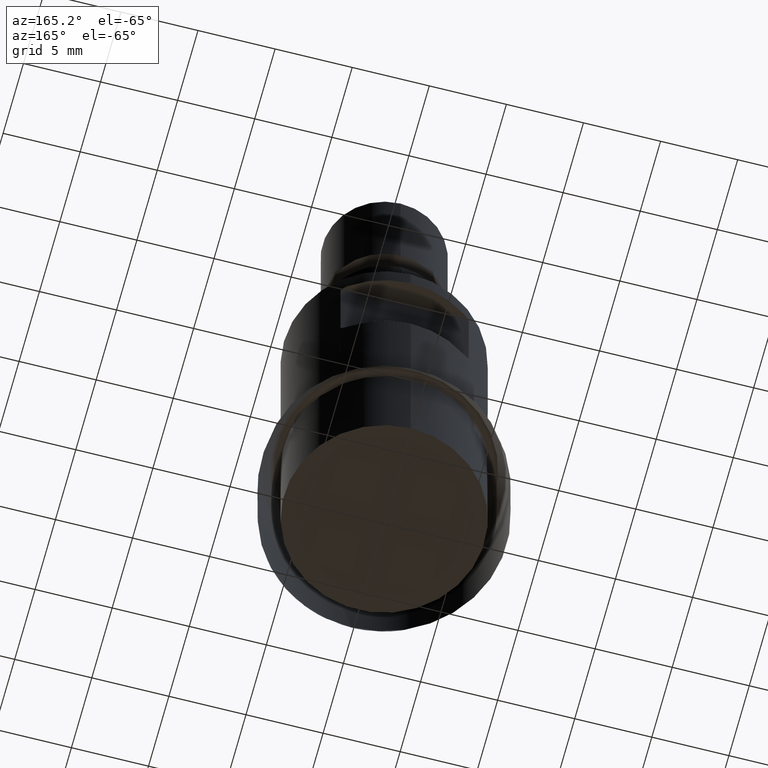
[diagram: clean part render]
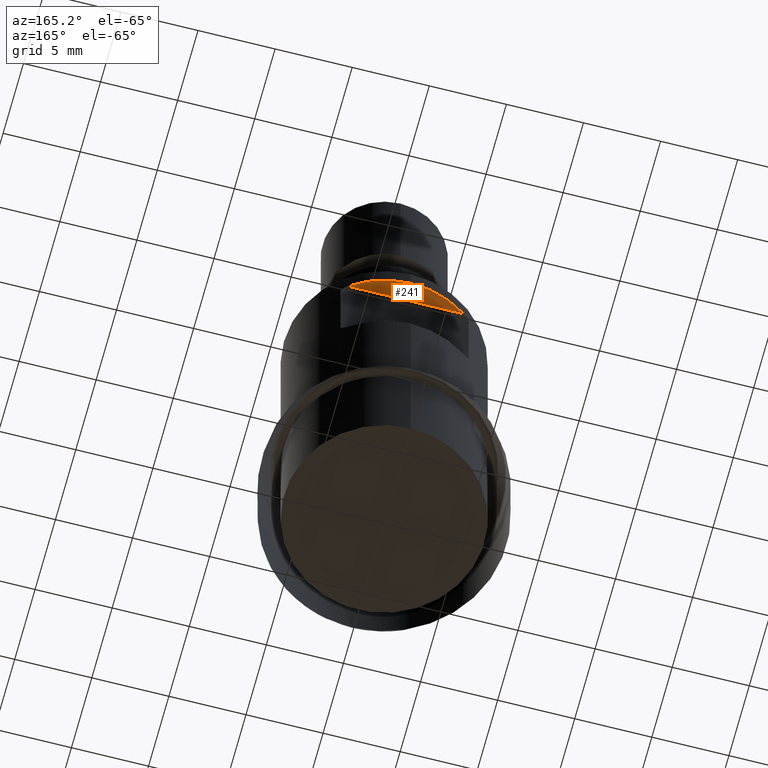
[diagram: same view with one face highlighted and labeled with its STEP entity id]
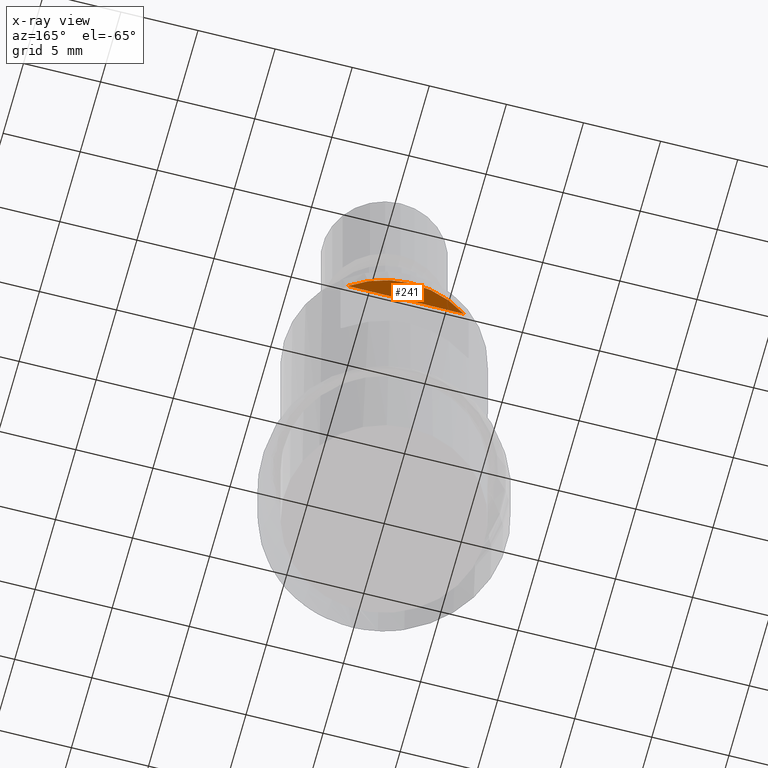
[diagram: x-ray of the same camera — body ghosted, the highlighted face saturated]
A machine part, auxiliary view. The second image highlights one B-rep face of the part: STEP entity #241.
The next image is the same camera in x-ray: the body ghosted, the highlighted face saturated — about 0% of this face is hidden behind the body in this view.
In plain terms, the highlighted planar face has unit normal (0, 0, 1).
Its self-contained STEP definition (entity closure, byte-faithful):
#160=FACE_OUTER_BOUND('',#391,.T.);
#173=LINE('',#1457,#191);
#191=VECTOR('',#925,1.);
#241=ADVANCED_FACE('',(#160),#273,.F.);
#273=PLANE('',#803);
#391=EDGE_LOOP('',(#503,#504));
#503=ORIENTED_EDGE('',*,*,#650,.T.);
#504=ORIENTED_EDGE('',*,*,#627,.F.);
#573=VERTEX_POINT('',#1282);
#574=VERTEX_POINT('',#1284);
#627=EDGE_CURVE('',#573,#574,#686,.T.);
#650=EDGE_CURVE('',#573,#574,#173,.T.);
#686=CIRCLE('',#782,6.50000000000001);
#782=AXIS2_PLACEMENT_3D('',#1283,#875,#876);
#803=AXIS2_PLACEMENT_3D('',#1458,#926,#927);
#875=DIRECTION('',(1.17145536458252E-15,1.17145536458252E-15,1.));
#876=DIRECTION('',(0.,1.,-1.06752213906265E-15));
#925=DIRECTION('',(-1.,1.37230767120917E-30,1.17145536458252E-15));
#926=DIRECTION('',(1.17145536458252E-15,1.17145536458252E-15,1.));
#927=DIRECTION('',(0.,-1.,1.17267306976032E-15));
#1282=CARTESIAN_POINT('',(3.76297754444539,5.30000000000003,21.487));
#1283=CARTESIAN_POINT('',(2.51710614187847E-14,2.51710614187847E-14,21.487));
#1284=CARTESIAN_POINT('',(-3.76297754444534,5.30000000000003,21.487));
#1457=CARTESIAN_POINT('',(5.00000000000002,5.30000000000003,21.487));
#1458=CARTESIAN_POINT('',(5.00000000000002,8.40000000000003,21.487));